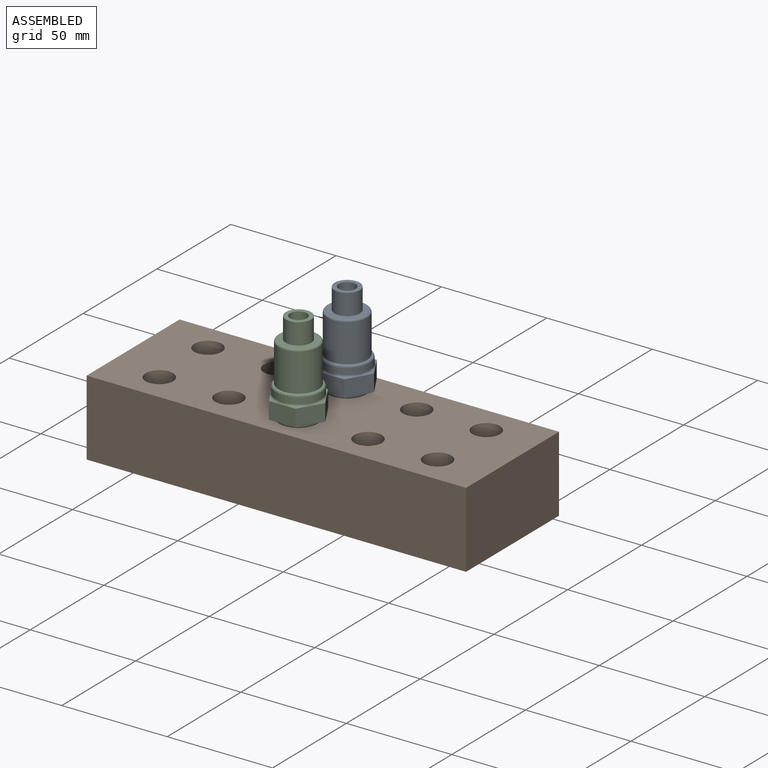
[diagram: assembled view]
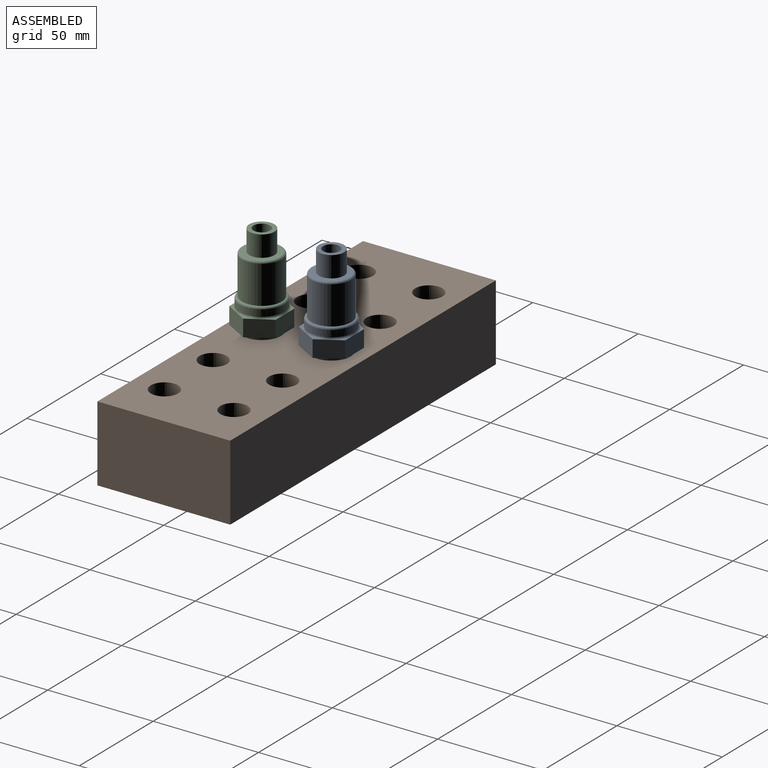
[diagram: assembled view, second angle]
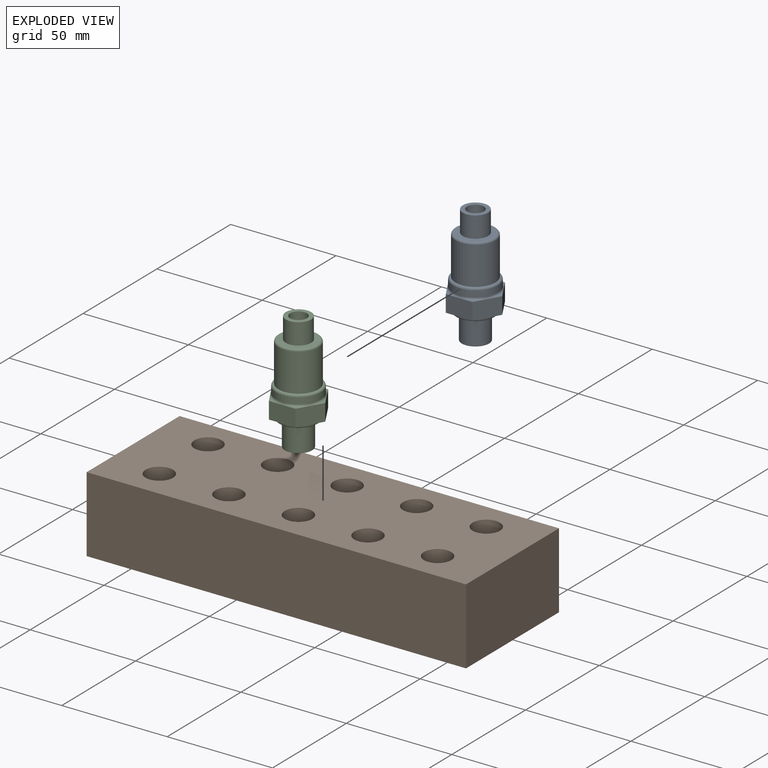
[diagram: exploded view]
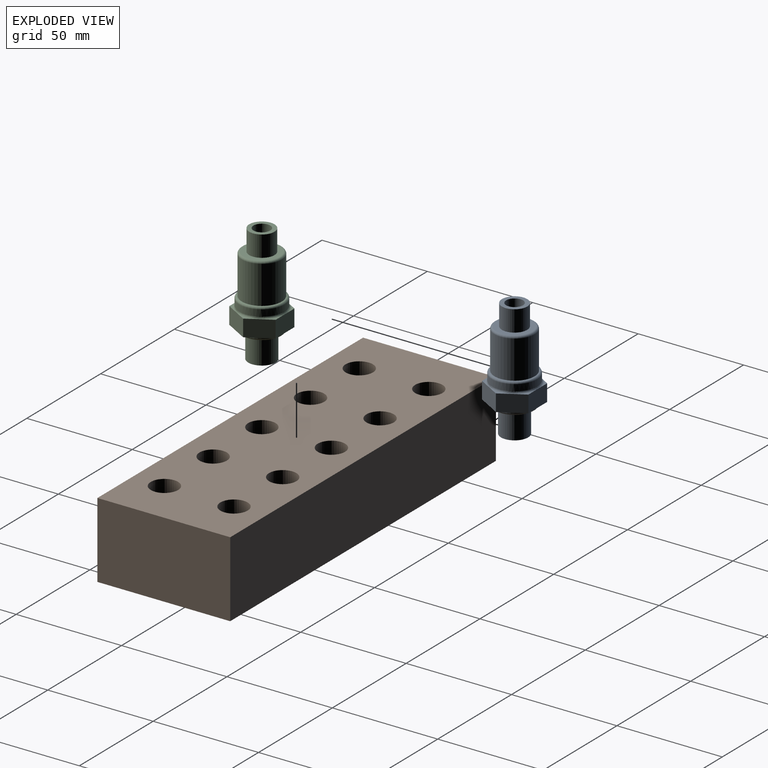
[diagram: exploded view, second angle]
ASSEMBLY  parts=3 mates=2
PART A: 40 faces, bbox 25.5x24.3x56.1 mm
  f0: plane 3.77x2.18mm, normal (0,0,1), area 2.1mm2, adj f12,f13,f34
  f1: plane 3.77x2.18mm, normal (0,0,1), area 2.1mm2, adj f11,f12,f30
  f2: plane 4.35x1.26mm, normal (0,0,1), area 2.1mm2, adj f10,f11,f26
  f3: plane 3.77x2.18mm, normal (0,0,1), area 2.1mm2, adj f9,f10,f27
  f4: plane 3.77x2.18mm, normal (0,0,1), area 2.1mm2, adj f8,f9,f31
  f5: cylinder r=6.45mm len=12.9mm, axis (0,0,-1), area 486.3mm2, adj f6,f7
  f6: plane 12.9x12.9mm, normal (0,0,-1), area 130.7mm2, adj f5
  f7: plane 17x17mm, normal (0,0,-1), area 96.3mm2, adj f5,f39
  f8: plane 11.06x8.06mm, normal (0.87,0.5,0), area 101.6mm2, adj f4,f9,f13,f14,f15,f33
  f9: plane 12.76x8.06mm, normal (0,1,0), area 101.6mm2, adj f3,f4,f8,f10,f15,f29
  f10: plane 11.06x8.06mm, normal (-0.87,0.5,0), area 101.6mm2, adj f2,f3,f9,f11,f15,f25
  f11: plane 11.06x8.06mm, normal (-0.87,-0.5,0), area 101.6mm2, adj f1,f2,f10,f12,f15,f28
  f12: plane 12.76x8.06mm, normal (0,-1,0), area 101.6mm2, adj f0,f1,f11,f13,f15,f32
  f13: plane 11.06x8.06mm, normal (0.87,-0.5,0), area 101.6mm2, adj f0,f8,f12,f14,f15,f36
  f14: plane 4.35x1.26mm, normal (0,0,1), area 2.1mm2, adj f8,f13,f35
  f15: plane 25.4x22mm, normal (0,0,-1), area 72.8mm2, adj f8,f9,f10,f11,f12,f13,f38
  f16: cylinder r=10.65mm len=21.3mm, axis (0,0,-1), area 200.8mm2, adj f25,f26,f27,f28,f29,f30,f31,f32
  f17: plane 19.3x19.3mm, normal (0,0,1), area 9mm2, adj f18,f37
  f18: cylinder r=9.5mm len=19mm, axis (0,0,-1), area 1074.4mm2, adj f17,f24
  f19: plane 17x17mm, normal (0,0,1), area 113.9mm2, adj f20,f24
  f20: cylinder r=6mm len=12mm, axis (0,0,-1), area 377mm2, adj f19,f21
  f21: plane 12x12mm, normal (0,0,1), area 62.8mm2, adj f20,f22
  f22: cylinder r=4mm len=10mm, axis (0,0,1), area 251.3mm2, adj f21,f23
  f23: plane 8x8mm, normal (0,0,1), area 50.3mm2, adj f22
  f24: torus R=8.5mm, axis (0,0,1), area 90.2mm2, adj f18,f19
  f25: bspline ~6.83x4.49mm, area 8.1mm2, adj f10,f16,f26,f27
  f26: torus R=11.65mm, axis (0,0,1), area 6.5mm2, adj f2,f16,f25,f28
  f27: torus R=11.65mm, axis (0,0,1), area 6.5mm2, adj f3,f16,f25,f29
  f28: bspline ~6.83x4.49mm, area 8.1mm2, adj f11,f16,f26,f30
  f29: bspline ~8.73x1.23mm, area 8.1mm2, adj f9,f16,f27,f31
  f30: torus R=11.65mm, axis (0,0,1), area 6.5mm2, adj f1,f16,f28,f32
  f31: torus R=11.65mm, axis (0,0,1), area 6.5mm2, adj f4,f16,f29,f33
  f32: bspline ~8.73x1.23mm, area 8.1mm2, adj f12,f16,f30,f34
  f33: bspline ~7.8x5.14mm, area 8.1mm2, adj f8,f16,f31,f35
  f34: torus R=11.65mm, axis (0,0,1), area 6.5mm2, adj f0,f16,f32,f36
  f35: torus R=11.65mm, axis (0,0,1), area 6.5mm2, adj f14,f16,f33,f36
  f36: bspline ~6.83x4.49mm, area 8.1mm2, adj f13,f16,f34,f35
  f37: torus R=9.65mm, axis (0,0,1), area 101.5mm2, adj f16,f17
  f38: torus R=10.5mm, axis (0,0,1), area 97.3mm2, adj f15,f39
  f39: torus R=8.5mm, axis (0,0,1), area 90.2mm2, adj f7,f38
PART B: 16 faces, bbox 180x63x36 mm
  f0: plane 63x36mm, normal (1,0,0), area 2268mm2, adj f1,f3,f4,f5
  f1: plane 180x36mm, normal (0,1,0), area 6480mm2, adj f0,f2,f4,f5
  f2: plane 63x36mm, normal (-1,0,0), area 2268mm2, adj f1,f3,f4,f5
  f3: plane 180x36mm, normal (0,-1,0), area 6480mm2, adj f0,f2,f4,f5
  f4: plane 180x63mm, normal (0,0,1), area 10012.7mm2, adj f0,f1,f2,f3,f6,f7,f8,f9
  f5: plane 180x63mm, normal (0,0,-1), area 10012.7mm2, adj f0,f1,f2,f3,f6,f7,f8,f9
  f6: cylinder r=6.5mm len=36mm, axis (0,0,1), area 1470.3mm2, adj f4,f5
  f7: cylinder r=6.5mm len=36mm, axis (0,0,1), area 1470.3mm2, adj f4,f5
  f8: cylinder r=6.5mm len=36mm, axis (0,0,1), area 1470.3mm2, adj f4,f5
  f9: cylinder r=6.5mm len=36mm, axis (0,0,1), area 1470.3mm2, adj f4,f5
  f10: cylinder r=6.5mm len=36mm, axis (0,0,1), area 1470.3mm2, adj f4,f5
  f11: cylinder r=6.5mm len=36mm, axis (0,0,1), area 1470.3mm2, adj f4,f5
  f12: cylinder r=6.5mm len=36mm, axis (0,0,1), area 1470.3mm2, adj f4,f5
  f13: cylinder r=6.5mm len=36mm, axis (0,0,1), area 1470.3mm2, adj f4,f5
  f14: cylinder r=6.5mm len=36mm, axis (0,0,1), area 1470.3mm2, adj f4,f5
  f15: cylinder r=6.5mm len=36mm, axis (0,0,1), area 1470.3mm2, adj f4,f5
PART C: same geometry as A
PLACE A t=(-17.95,-38.91,28.4)mm
PLACE B t=(-77.06,-5.88,4.4)mm fixed
PLACE C t=(-17.95,-71.91,28.4)mm
MATE slider B.f6 <-> A.f5  axis (0,0,1) through (-77.06,10.62,40.4)mm
MATE slider B.f11 <-> C.f5  axis (0,0,1) through (-77.06,-22.38,40.4)mm
